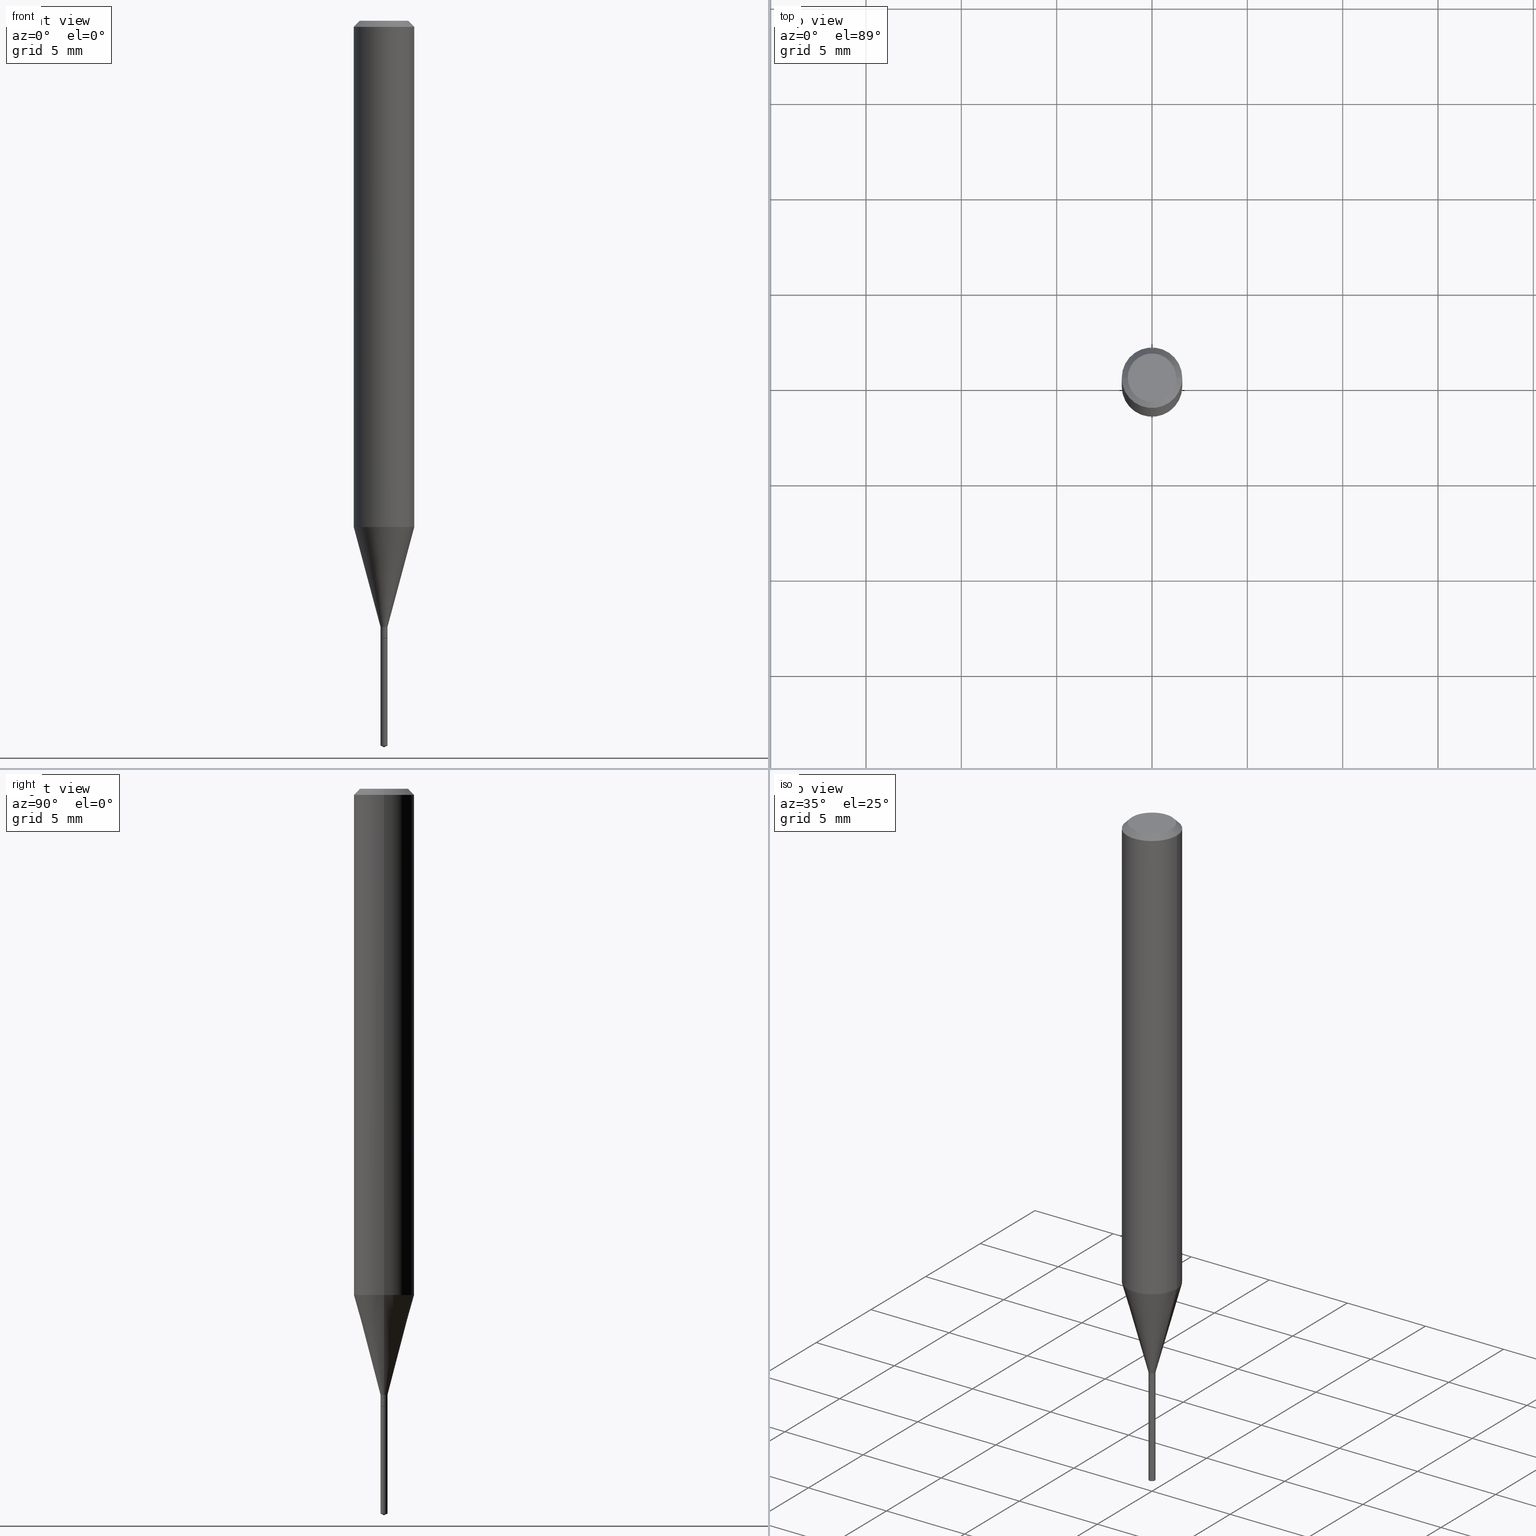
[diagram: canonical four-view strip — front | top / right | iso, engineering-drawing reading convention]
A machine part, canonical four-view strip (front | top / right | iso — engineering-drawing reading convention). The complete STEP part file that produces these views, byte-faithful:
ISO-10303-21;
HEADER;
FILE_DESCRIPTION (( 'STEP AP203' ),
    '1' );
FILE_NAME ('07110.STEP',
    '2024-04-23T19:31:04',
    ( '' ),
    ( '' ),
    'SwSTEP 2.0',
    'SolidWorks 2023',
    '' );
FILE_SCHEMA (( 'CONFIG_CONTROL_DESIGN' ));
ENDSEC;

DATA;
#1 = LENGTH_MEASURE_WITH_UNIT ( LENGTH_MEASURE( 0.02539999999999999897 ), #422 );
#2 = ORIENTED_EDGE ( 'NONE', *, *, #472, .F. ) ;
#3 = APPROVAL_ROLE ( '' ) ;
#4 = UNCERTAINTY_MEASURE_WITH_UNIT (LENGTH_MEASURE( 1.000000000000000082E-05 ), #262, 'distance_accuracy_value', 'NONE');
#5 = DIRECTION ( 'NONE',  ( 1.000000000000000000, -6.982962677686266711E-15, 0.000000000000000000 ) ) ;
#6 = ORIENTED_EDGE ( 'NONE', *, *, #39, .F. ) ;
#7 = PERSON_AND_ORGANIZATION ( #179, #117 ) ;
#8 = DIRECTION ( 'NONE',  ( 1.000000000000000000, -6.982962677686266711E-15, 4.876176775795935793E-29 ) ) ;
#9 = AXIS2_PLACEMENT_3D ( 'NONE', #133, #172, #175 ) ;
#10 = ORIENTED_EDGE ( 'NONE', *, *, #233, .T. ) ;
#11 = COORDINATED_UNIVERSAL_TIME_OFFSET ( 5, 0, .BEHIND. ) ;
#12 = LINE ( 'NONE', #129, #450 ) ;
#13 = EDGE_CURVE ( 'NONE', #119, #283, #48, .T. ) ;
#14 = DATE_AND_TIME ( #204, #303 ) ;
#15 = DIRECTION ( 'NONE',  ( -0.7071067811865452413, 2.468850131082233000E-15, -0.7071067811865497932 ) ) ;
#16 = DIRECTION ( 'NONE',  ( -2.441004968667903807E-29, 3.497873808233676026E-15, 1.000000000000000000 ) ) ;
#17 = VECTOR ( 'NONE', #215, 39.37007874015748143 ) ;
#18 = ORIENTED_EDGE ( 'NONE', *, *, #472, .T. ) ;
#19 = CIRCLE ( 'NONE', #441, 0.006749999999999999924 ) ;
#20 = EDGE_CURVE ( 'NONE', #267, #313, #203, .T. ) ;
#21 = ORIENTED_EDGE ( 'NONE', *, *, #13, .F. ) ;
#22 = CARTESIAN_POINT ( 'NONE',  ( 0.06250000000000006939, -4.364351673553921624E-16, 3.047610484872463374E-30 ) ) ;
#23 = CARTESIAN_POINT ( 'NONE',  ( 0.000000000000000000, 0.000000000000000000, 0.000000000000000000 ) ) ;
#24 = PRODUCT ( '07110', '07110', '', ( #316 ) ) ;
#25 = DIRECTION ( 'NONE',  ( -2.445468806185136597E-29, 3.491481338843145583E-15, 1.000000000000000000 ) ) ;
#26 = CARTESIAN_POINT ( 'NONE',  ( 2.556014249786402796E-29, -3.649310934727484805E-15, -1.045204192881819649 ) ) ;
#27 = CARTESIAN_POINT ( 'NONE',  ( 0.06250000000000013878, -4.085746102082878052E-15, -1.045204192881819649 ) ) ;
#28 = AXIS2_PLACEMENT_3D ( 'NONE', #188, #451, #113 ) ;
#29 = CC_DESIGN_APPROVAL ( #479, ( #454 ) ) ;
#30 = DIRECTION ( 'NONE',  ( 1.000000000000000000, -6.982962677686299054E-15, 0.000000000000000000 ) ) ;
#31 = FACE_OUTER_BOUND ( 'NONE', #112, .T. ) ;
#32 = CARTESIAN_POINT ( 'NONE',  ( 3.060259664060080366E-29, -4.369239747428313470E-15, -1.251400000000000290 ) ) ;
#33 = ORIENTED_EDGE ( 'NONE', *, *, #238, .T. ) ;
#34 = FACE_OUTER_BOUND ( 'NONE', #335, .T. ) ;
#35 = CARTESIAN_POINT ( 'NONE',  ( 0.06250000000000000000, -4.724246415962603826E-16, -0.01250000000000008396 ) ) ;
#36 = ORIENTED_EDGE ( 'NONE', *, *, #167, .F. ) ;
#37 = DIRECTION ( 'NONE',  ( 0.000000000000000000, 0.000000000000000000, 1.000000000000000000 ) ) ;
#38 = AXIS2_PLACEMENT_3D ( 'NONE', #128, #393, #125 ) ;
#39 = EDGE_CURVE ( 'NONE', #369, #324, #342, .T. ) ;
#40 = CARTESIAN_POINT ( 'NONE',  ( 3.672990052264815419E-29, -5.230509915404661862E-15, -1.500000000000000222 ) ) ;
#41 = APPROVAL_DATE_TIME ( #88, #225 ) ;
#42 = APPROVAL_STATUS ( 'not_yet_approved' ) ;
#43 = EDGE_CURVE ( 'NONE', #313, #475, #351, .T. ) ;
#44 = AXIS2_PLACEMENT_3D ( 'NONE', #110, #372, #223 ) ;
#45 = ORIENTED_EDGE ( 'NONE', *, *, #76, .T. ) ;
#46 = CIRCLE ( 'NONE', #269, 0.007250000000000000368 ) ;
#47 = COORDINATED_UNIVERSAL_TIME_OFFSET ( 5, 0, .BEHIND. ) ;
#48 = LINE ( 'NONE', #40, #364 ) ;
#49 = CARTESIAN_POINT ( 'NONE',  ( -0.007250000000000000368, -4.358052008549344274E-15, -1.274500000000000188 ) ) ;
#50 = VECTOR ( 'NONE', #373, 39.37007874015748143 ) ;
#51 = CARTESIAN_POINT ( 'NONE',  ( -0.007250000000000000368, 5.151434834260726609E-17, -3.566227940434806566E-31 ) ) ;
#52 = CARTESIAN_POINT ( 'NONE',  ( 0.000000000000000000, 0.000000000000000000, 0.000000000000000000 ) ) ;
#53 = CARTESIAN_POINT ( 'NONE',  ( 3.117972727886049049E-29, -4.451638707025011594E-15, -1.275000000000000133 ) ) ;
#54 = ADVANCED_FACE ( 'NONE', ( #322 ), #200, .T. ) ;
#55 = FACE_OUTER_BOUND ( 'NONE', #380, .T. ) ;
#56 = CIRCLE ( 'NONE', #134, 0.04999999999999999584 ) ;
#57 = ORIENTED_EDGE ( 'NONE', *, *, #396, .F. ) ;
#58 = AXIS2_PLACEMENT_3D ( 'NONE', #156, #83, #427 ) ;
#59 = DIRECTION ( 'NONE',  ( -2.445468806185136597E-29, 3.491481338843145583E-15, 1.000000000000000000 ) ) ;
#60 = CARTESIAN_POINT ( 'NONE',  ( 3.117972727886049049E-29, -4.451638707025011594E-15, -1.275000000000000133 ) ) ;
#61 = CC_DESIGN_DATE_AND_TIME_ASSIGNMENT ( #14, #473, ( #361 ) ) ;
#62 = ORIENTED_EDGE ( 'NONE', *, *, #43, .T. ) ;
#63 = CARTESIAN_POINT ( 'NONE',  ( 3.117972727886049049E-29, -4.451638707025011594E-15, -1.275000000000000133 ) ) ;
#64 = FACE_OUTER_BOUND ( 'NONE', #229, .T. ) ;
#65 = APPLICATION_CONTEXT ( 'configuration controlled 3d designs of mechanical parts and assemblies' ) ;
#66 = CARTESIAN_POINT ( 'NONE',  ( 3.661507453001856271E-29, -5.246810712350514039E-15, -1.500000000000000222 ) ) ;
#67 = EDGE_CURVE ( 'NONE', #345, #314, #12, .T. ) ;
#68 = DIRECTION ( 'NONE',  ( 1.000000000000000000, -6.982962677686299054E-15, 0.000000000000000000 ) ) ;
#69 = ORIENTED_EDGE ( 'NONE', *, *, #167, .T. ) ;
#70 = AXIS2_PLACEMENT_3D ( 'NONE', #146, #298, #250 ) ;
#71 = FACE_OUTER_BOUND ( 'NONE', #122, .T. ) ;
#72 = ADVANCED_FACE ( 'NONE', ( #90 ), #241, .F. ) ;
#73 = FACE_OUTER_BOUND ( 'NONE', #100, .T. ) ;
#74 = ORIENTED_EDGE ( 'NONE', *, *, #43, .F. ) ;
#75 = DIRECTION ( 'NONE',  ( -2.445468806185136877E-29, 3.491481338843145188E-15, 1.000000000000000000 ) ) ;
#76 = EDGE_CURVE ( 'NONE', #249, #324, #99, .T. ) ;
#77 = EDGE_LOOP ( 'NONE', ( #435, #93 ) ) ;
#78 = PERSON_AND_ORGANIZATION ( #179, #117 ) ;
#79 = CC_DESIGN_SECURITY_CLASSIFICATION ( #361, ( #392 ) ) ;
#80 = CC_DESIGN_PERSON_AND_ORGANIZATION_ASSIGNMENT ( #390, #194, ( #24 ) ) ;
#81 = VERTEX_POINT ( 'NONE', #329 ) ;
#82 = CARTESIAN_POINT ( 'NONE',  ( 0.007250000000000000368, -5.062647941322543390E-17, 3.535228162452053555E-31 ) ) ;
#83 = DIRECTION ( 'NONE',  ( -2.441004968667903807E-29, 3.497873808233676026E-15, 1.000000000000000000 ) ) ;
#84 = ORIENTED_EDGE ( 'NONE', *, *, #287, .T. ) ;
#85 = ORIENTED_EDGE ( 'NONE', *, *, #233, .F. ) ;
#86 = EDGE_CURVE ( 'NONE', #283, #154, #206, .T. ) ;
#87 = DIRECTION ( 'NONE',  ( 1.000000000000000000, -6.982962677686262766E-15, 0.000000000000000000 ) ) ;
#88 = DATE_AND_TIME ( #425, #482 ) ;
#89 = VECTOR ( 'NONE', #16, 39.37007874015748143 ) ;
#90 = FACE_OUTER_BOUND ( 'NONE', #77, .T. ) ;
#91 = APPROVAL_PERSON_ORGANIZATION ( #284, #184, #466 ) ;
#92 = DIRECTION ( 'NONE',  ( -2.441004968667903807E-29, 3.497873808233676026E-15, 1.000000000000000000 ) ) ;
#93 = ORIENTED_EDGE ( 'NONE', *, *, #171, .T. ) ;
#94 = EDGE_CURVE ( 'NONE', #314, #267, #244, .T. ) ;
#95 = APPLICATION_CONTEXT ( 'configuration controlled 3d designs of mechanical parts and assemblies' ) ;
#96 = CARTESIAN_POINT ( 'NONE',  ( -4.132873053354867254E-48, 5.900647395337818946E-34, 1.690012582823346072E-19 ) ) ;
#97 = CC_DESIGN_PERSON_AND_ORGANIZATION_ASSIGNMENT ( #311, #201, ( #454 ) ) ;
#98 = CIRCLE ( 'NONE', #123, 0.007250000000000001235 ) ;
#99 = LINE ( 'NONE', #104, #315 ) ;
#100 = EDGE_LOOP ( 'NONE', ( #85, #263, #359 ) ) ;
#101 = EDGE_CURVE ( 'NONE', #249, #476, #168, .T. ) ;
#102 = ORIENTED_EDGE ( 'NONE', *, *, #238, .F. ) ;
#103 = CARTESIAN_POINT ( 'NONE',  ( 3.658946465835318084E-29, -5.226834945133305336E-15, -1.496619269478376646 ) ) ;
#104 = CARTESIAN_POINT ( 'NONE',  ( -0.06250000000000000000, 3.927916506198520587E-16, -0.01250000000000008396 ) ) ;
#105 = VECTOR ( 'NONE', #430, 39.37007874015748854 ) ;
#106 = ORIENTED_EDGE ( 'NONE', *, *, #67, .F. ) ;
#107 = LINE ( 'NONE', #22, #462 ) ;
#108 = FACE_OUTER_BOUND ( 'NONE', #421, .T. ) ;
#109 = LINE ( 'NONE', #220, #50 ) ;
#110 = CARTESIAN_POINT ( 'NONE',  ( 3.117972727886049049E-29, -4.451638707025011594E-15, -1.275000000000000133 ) ) ;
#111 = EDGE_CURVE ( 'NONE', #137, #283, #193, .T. ) ;
#112 = EDGE_LOOP ( 'NONE', ( #403, #384, #173, #428 ) ) ;
#113 = DIRECTION ( 'NONE',  ( -1.000000000000000000, 6.982962677686266711E-15, 0.000000000000000000 ) ) ;
#114 = CONICAL_SURFACE ( 'NONE', #151, 0.007250000000000000368, 0.2617993877991499629 ) ;
#115 = CARTESIAN_POINT ( 'NONE',  ( 0.006749999999999999924, -4.498773705099393768E-15, -1.275000000000000133 ) ) ;
#116 = LOCAL_TIME ( 15, 31, 4.000000000000000000, #152 ) ;
#117 = ORGANIZATION ( 'UNSPECIFIED', 'UNSPECIFIED', '' ) ;
#118 = FACE_OUTER_BOUND ( 'NONE', #176, .T. ) ;
#119 = VERTEX_POINT ( 'NONE', #326 ) ;
#120 = ADVANCED_FACE ( 'NONE', ( #331 ), #400, .T. ) ;
#121 = DATE_TIME_ROLE ( 'creation_date' ) ;
#122 = EDGE_LOOP ( 'NONE', ( #84, #467, #383, #126 ) ) ;
#123 = AXIS2_PLACEMENT_3D ( 'NONE', #103, #147, #404 ) ;
#124 = ORIENTED_EDGE ( 'NONE', *, *, #20, .F. ) ;
#125 = DIRECTION ( 'NONE',  ( -1.000000000000000000, 6.982962677686266711E-15, 0.000000000000000000 ) ) ;
#126 = ORIENTED_EDGE ( 'NONE', *, *, #477, .F. ) ;
#127 = CC_DESIGN_PERSON_AND_ORGANIZATION_ASSIGNMENT ( #420, #155, ( #392 ) ) ;
#128 = CARTESIAN_POINT ( 'NONE',  ( 3.056836007731441415E-31, -4.364351673553961684E-17, -0.01250000000000008396 ) ) ;
#129 = CARTESIAN_POINT ( 'NONE',  ( -0.006749999999999999924, -4.403677072361204592E-15, -1.275000000000000133 ) ) ;
#130 = ORIENTED_EDGE ( 'NONE', *, *, #396, .T. ) ;
#131 = ADVANCED_FACE ( 'NONE', ( #55 ), #447, .F. ) ;
#132 = PRODUCT_RELATED_PRODUCT_CATEGORY ( 'detail', '', ( #24 ) ) ;
#133 = CARTESIAN_POINT ( 'NONE',  ( -8.265746106709734507E-48, 1.180129479067563789E-33, 3.380025165646692144E-19 ) ) ;
#134 = AXIS2_PLACEMENT_3D ( 'NONE', #296, #221, #418 ) ;
#135 = AXIS2_PLACEMENT_3D ( 'NONE', #218, #214, #410 ) ;
#136 = ORIENTED_EDGE ( 'NONE', *, *, #198, .T. ) ;
#137 = VERTEX_POINT ( 'NONE', #219 ) ;
#138 = DIRECTION ( 'NONE',  ( -2.445468806185136597E-29, 3.491481338843145583E-15, 1.000000000000000000 ) ) ;
#139 = EDGE_LOOP ( 'NONE', ( #102, #62, #370, #457 ) ) ;
#140 = DIRECTION ( 'NONE',  ( -2.445468806185136597E-29, 3.491481338843145583E-15, 1.000000000000000000 ) ) ;
#141 = CARTESIAN_POINT ( 'NONE',  ( 3.116749993482957368E-29, -4.449892966355590090E-15, -1.274500000000000188 ) ) ;
#142 = AXIS2_PLACEMENT_3D ( 'NONE', #141, #291, #442 ) ;
#143 = DIRECTION ( 'NONE',  ( 1.000000000000000000, -6.982962677686266711E-15, 4.876176775795935793E-29 ) ) ;
#144 = DIRECTION ( 'NONE',  ( -2.445468806185136597E-29, 3.491481338843145583E-15, 1.000000000000000000 ) ) ;
#145 = CARTESIAN_POINT ( 'NONE',  ( -0.006749999999999999924, -4.401027845187093391E-15, -1.275000000000000133 ) ) ;
#146 = CARTESIAN_POINT ( 'NONE',  ( -9.243535897573469327E-28, 1.324729069394167476E-13, 37.87007874015748143 ) ) ;
#147 = DIRECTION ( 'NONE',  ( -2.441004968667903807E-29, 3.497873808233676026E-15, 1.000000000000000000 ) ) ;
#148 = CARTESIAN_POINT ( 'NONE',  ( -0.007250000000000000368, -4.358052008549344274E-15, -1.251400000000000290 ) ) ;
#149 = VERTEX_POINT ( 'NONE', #256 ) ;
#150 = ADVANCED_FACE ( 'NONE', ( #108 ), #292, .T. ) ;
#151 = AXIS2_PLACEMENT_3D ( 'NONE', #489, #186, #30 ) ;
#152 = COORDINATED_UNIVERSAL_TIME_OFFSET ( 5, 0, .BEHIND. ) ;
#153 = CARTESIAN_POINT ( 'NONE',  ( 3.117972727886049049E-29, -4.451638707025011594E-15, -1.275000000000000133 ) ) ;
#154 = VERTEX_POINT ( 'NONE', #409 ) ;
#155 = PERSON_AND_ORGANIZATION_ROLE ( 'design_supplier' ) ;
#156 = CARTESIAN_POINT ( 'NONE',  ( -9.243535897573469327E-28, 1.324729069394167476E-13, 37.87007874015748143 ) ) ;
#157 = PERSON_AND_ORGANIZATION_ROLE ( 'creator' ) ;
#158 = EDGE_CURVE ( 'NONE', #149, #345, #398, .T. ) ;
#159 = AXIS2_PLACEMENT_3D ( 'NONE', #308, #37, #355 ) ;
#160 = ORIENTED_EDGE ( 'NONE', *, *, #266, .F. ) ;
#161 = ORIENTED_EDGE ( 'NONE', *, *, #389, .T. ) ;
#162 = CARTESIAN_POINT ( 'NONE',  ( -5.062647941319424924E-17, -0.007250000000004452536, -1.275000000000000133 ) ) ;
#163 = ADVANCED_FACE ( 'NONE', ( #71 ), #478, .T. ) ;
#164 = ORIENTED_EDGE ( 'NONE', *, *, #20, .T. ) ;
#165 = DIRECTION ( 'NONE',  ( -2.445468806185136597E-29, 3.491481338843145583E-15, 1.000000000000000000 ) ) ;
#166 = ORIENTED_EDGE ( 'NONE', *, *, #198, .F. ) ;
#167 = EDGE_CURVE ( 'NONE', #476, #369, #407, .T. ) ;
#168 = CIRCLE ( 'NONE', #9, 0.04999999999999999584 ) ;
#169 = DIRECTION ( 'NONE',  ( -6.982962677686265922E-15, -1.000000000000000000, 0.000000000000000000 ) ) ;
#170 = CONICAL_SURFACE ( 'NONE', #70, 84.42940631927950790, 1.134464013796339321 ) ;
#171 = EDGE_CURVE ( 'NONE', #476, #249, #56, .T. ) ;
#172 = DIRECTION ( 'NONE',  ( -2.445468806185136597E-29, 3.491481338843145583E-15, 1.000000000000000000 ) ) ;
#173 = ORIENTED_EDGE ( 'NONE', *, *, #287, .F. ) ;
#174 = ADVANCED_FACE ( 'NONE', ( #64 ), #183, .T. ) ;
#175 = DIRECTION ( 'NONE',  ( 1.000000000000000000, -6.982962677686265922E-15, 4.876194921942043128E-29 ) ) ;
#176 = EDGE_LOOP ( 'NONE', ( #124, #306, #217, #74 ) ) ;
#177 = CYLINDRICAL_SURFACE ( 'NONE', #423, 0.007250000000000000368 ) ;
#178 = CARTESIAN_POINT ( 'NONE',  ( 5.151434834264384951E-17, 0.007249999999994773646, -1.496619269478376646 ) ) ;
#179 = PERSON ( 'UNSPECIFIED', 'UNSPECIFIED', 'UNSPECIFIED', ('UNSPECIFIED'), ('UNSPECIFIED'), ('UNSPECIFIED') ) ;
#180 = ADVANCED_FACE ( 'NONE', ( #254 ), #191, .T. ) ;
#181 = DIRECTION ( 'NONE',  ( -2.445468806185136597E-29, 3.491481338843145583E-15, 1.000000000000000000 ) ) ;
#182 = DIRECTION ( 'NONE',  ( 1.000000000000000000, -6.982962677686299054E-15, 0.000000000000000000 ) ) ;
#183 = CONICAL_SURFACE ( 'NONE', #28, 0.06250000000000000000, 0.7853981633974450594 ) ;
#184 = APPROVAL ( #471, 'UNSPECIFIED' ) ;
#185 = DIRECTION ( 'NONE',  ( 1.000000000000000000, -6.982962677686299054E-15, 0.000000000000000000 ) ) ;
#186 = DIRECTION ( 'NONE',  ( -2.445468806185136597E-29, 3.491481338843145583E-15, 1.000000000000000000 ) ) ;
#187 = CARTESIAN_POINT ( 'NONE',  ( 3.117972727886049049E-29, -4.451638707025011594E-15, -1.275000000000000133 ) ) ;
#188 = CARTESIAN_POINT ( 'NONE',  ( 3.056836007731441415E-31, -4.364351673553961684E-17, -0.01250000000000008396 ) ) ;
#189 = ADVANCED_FACE ( 'NONE', ( #118 ), #114, .T. ) ;
#190 = EDGE_LOOP ( 'NONE', ( #286, #261, #318, #2 ) ) ;
#191 = CYLINDRICAL_SURFACE ( 'NONE', #44, 0.007250000000000000368 ) ;
#192 = ORIENTED_EDGE ( 'NONE', *, *, #307, .F. ) ;
#193 = CIRCLE ( 'NONE', #251, 0.007250000000000001235 ) ;
#194 = PERSON_AND_ORGANIZATION_ROLE ( 'design_owner' ) ;
#195 = CONICAL_SURFACE ( 'NONE', #399, 0.006749999999999999924, 0.7853981633975496424 ) ;
#196 =( NAMED_UNIT ( * ) SI_UNIT ( $, .STERADIAN. ) SOLID_ANGLE_UNIT ( ) );
#197 = DIRECTION ( 'NONE',  ( 6.439704144417100562E-15, 0.9063077870366620381, 0.4226182617406735731 ) ) ;
#198 = EDGE_CURVE ( 'NONE', #475, #313, #333, .T. ) ;
#199 = APPLICATION_PROTOCOL_DEFINITION ( 'international standard', 'config_control_design', 1994, #95 ) ;
#200 = CYLINDRICAL_SURFACE ( 'NONE', #258, 0.06250000000000006939 ) ;
#201 = PERSON_AND_ORGANIZATION_ROLE ( 'creator' ) ;
#202 = VECTOR ( 'NONE', #440, 39.37007874015748143 ) ;
#203 = LINE ( 'NONE', #278, #105 ) ;
#204 = CALENDAR_DATE ( 2024, 23, 4 ) ;
#205 = FACE_OUTER_BOUND ( 'NONE', #453, .T. ) ;
#206 = LINE ( 'NONE', #246, #89 ) ;
#207 = APPROVAL_PERSON_ORGANIZATION ( #78, #225, #460 ) ;
#208 = DIRECTION ( 'NONE',  ( -2.445468806185136877E-29, 3.491481338843145188E-15, 1.000000000000000000 ) ) ;
#209 = DIRECTION ( 'NONE',  ( -2.445468806185136597E-29, 3.491481338843145583E-15, 1.000000000000000000 ) ) ;
#210 = DIRECTION ( 'NONE',  ( -6.982962677686265922E-15, -1.000000000000000000, 0.000000000000000000 ) ) ;
#211 = VECTOR ( 'NONE', #305, 39.37007874015748854 ) ;
#212 = LOCAL_TIME ( 15, 31, 4.000000000000000000, #433 ) ;
#213 = ORIENTED_EDGE ( 'NONE', *, *, #101, .F. ) ;
#214 = DIRECTION ( 'NONE',  ( -2.441004968667903807E-29, 3.497873808233676026E-15, 1.000000000000000000 ) ) ;
#215 = DIRECTION ( 'NONE',  ( -2.445468806185136877E-29, 3.491481338843145188E-15, 1.000000000000000000 ) ) ;
#216 = EDGE_CURVE ( 'NONE', #154, #289, #391, .T. ) ;
#217 = ORIENTED_EDGE ( 'NONE', *, *, #266, .T. ) ;
#218 = CARTESIAN_POINT ( 'NONE',  ( 3.117972727886049049E-29, -4.451638707025011594E-15, -1.275000000000000133 ) ) ;
#219 = CARTESIAN_POINT ( 'NONE',  ( -5.062647941318883198E-17, -0.007250000000005227090, -1.496619269478376646 ) ) ;
#220 = CARTESIAN_POINT ( 'NONE',  ( -5.062647941319424924E-17, -0.007250000000004452536, -1.275000000000000133 ) ) ;
#221 = DIRECTION ( 'NONE',  ( -2.445468806185136597E-29, 3.491481338843145583E-15, 1.000000000000000000 ) ) ;
#222 = CARTESIAN_POINT ( 'NONE',  ( 3.117972727886049049E-29, -4.451638707025011594E-15, -1.275000000000000133 ) ) ;
#223 = DIRECTION ( 'NONE',  ( -6.982962677686265922E-15, -1.000000000000000000, 0.000000000000000000 ) ) ;
#224 = DIRECTION ( 'NONE',  ( -2.445468806185136597E-29, 3.491481338843145583E-15, 1.000000000000000000 ) ) ;
#225 = APPROVAL ( #360, 'UNSPECIFIED' ) ;
#226 = DIRECTION ( 'NONE',  ( 1.000000000000000000, -6.982962677686262766E-15, 0.000000000000000000 ) ) ;
#227 = ORIENTED_EDGE ( 'NONE', *, *, #416, .F. ) ;
#228 = PERSON_AND_ORGANIZATION_ROLE ( 'classification_officer' ) ;
#229 = EDGE_LOOP ( 'NONE', ( #36, #213, #45, #426 ) ) ;
#230 = AXIS2_PLACEMENT_3D ( 'NONE', #60, #339, #371 ) ;
#231 = AXIS2_PLACEMENT_3D ( 'NONE', #63, #140, #259 ) ;
#232 = ORIENTED_EDGE ( 'NONE', *, *, #86, .F. ) ;
#233 = EDGE_CURVE ( 'NONE', #119, #137, #260, .T. ) ;
#234 = CARTESIAN_POINT ( 'NONE',  ( 2.556014249786402796E-29, -3.649310934727484805E-15, -1.045204192881819649 ) ) ;
#235 =( NAMED_UNIT ( * ) PLANE_ANGLE_UNIT ( ) SI_UNIT ( $, .RADIAN. ) );
#236 = SECURITY_CLASSIFICATION_LEVEL ( 'unclassified' ) ;
#237 = AXIS2_PLACEMENT_3D ( 'NONE', #153, #350, #413 ) ;
#238 = EDGE_CURVE ( 'NONE', #313, #324, #301, .T. ) ;
#239 = AXIS2_PLACEMENT_3D ( 'NONE', #187, #290, #338 ) ;
#240 = FACE_OUTER_BOUND ( 'NONE', #468, .T. ) ;
#241 = PLANE ( 'NONE',  #385 ) ;
#242 = VERTEX_POINT ( 'NONE', #348 ) ;
#243 = CLOSED_SHELL ( 'NONE', ( #352, #486, #54, #150, #163, #465, #189, #120, #174, #72, #323, #368 ) ) ;
#244 = LINE ( 'NONE', #51, #275 ) ;
#245 = CALENDAR_DATE ( 2024, 23, 4 ) ;
#246 = CARTESIAN_POINT ( 'NONE',  ( 5.151434834263843842E-17, 0.007249999999995548200, -1.275000000000000133 ) ) ;
#247 = ORIENTED_EDGE ( 'NONE', *, *, #171, .F. ) ;
#248 = CARTESIAN_POINT ( 'NONE',  ( 3.658946465835318084E-29, -5.226834945133305336E-15, -1.496619269478376646 ) ) ;
#249 = VERTEX_POINT ( 'NONE', #485 ) ;
#250 = DIRECTION ( 'NONE',  ( -6.982962677686267499E-15, -1.000000000000000000, 3.520397390770238511E-15 ) ) ;
#251 = AXIS2_PLACEMENT_3D ( 'NONE', #248, #402, #169 ) ;
#252 = CIRCLE ( 'NONE', #142, 0.007250000000000000368 ) ;
#253 = EDGE_LOOP ( 'NONE', ( #136, #33, #6, #227 ) ) ;
#254 = FACE_OUTER_BOUND ( 'NONE', #190, .T. ) ;
#255 = PLANE ( 'NONE',  #239 ) ;
#256 = CARTESIAN_POINT ( 'NONE',  ( 0.006749999999999999924, -4.498773705099393768E-15, -1.275000000000000133 ) ) ;
#257 = DIRECTION ( 'NONE',  ( 0.7071067811865452413, -7.319954787623248157E-15, -0.7071067811865497932 ) ) ;
#258 = AXIS2_PLACEMENT_3D ( 'NONE', #274, #358, #8 ) ;
#259 = DIRECTION ( 'NONE',  ( 1.000000000000000000, -6.982962677686224901E-15, 0.000000000000000000 ) ) ;
#260 = LINE ( 'NONE', #66, #488 ) ;
#261 = ORIENTED_EDGE ( 'NONE', *, *, #86, .T. ) ;
#262 =( CONVERSION_BASED_UNIT ( 'INCH', #1 ) LENGTH_UNIT ( ) NAMED_UNIT ( #293 ) );
#263 = ORIENTED_EDGE ( 'NONE', *, *, #13, .T. ) ;
#264 = MANIFOLD_SOLID_BREP ( 'Body-Move/Copy2[1]', #481 ) ;
#265 = FACE_OUTER_BOUND ( 'NONE', #464, .T. ) ;
#266 = EDGE_CURVE ( 'NONE', #81, #475, #456, .T. ) ;
#267 = VERTEX_POINT ( 'NONE', #148 ) ;
#268 = COORDINATED_UNIVERSAL_TIME_OFFSET ( 5, 0, .BEHIND. ) ;
#269 = AXIS2_PLACEMENT_3D ( 'NONE', #309, #165, #367 ) ;
#270 = MANIFOLD_SOLID_BREP ( 'Body-Move/Copy2[2]', #243 ) ;
#271 = ORIENTED_EDGE ( 'NONE', *, *, #477, .T. ) ;
#272 = ADVANCED_FACE ( 'NONE', ( #73 ), #170, .T. ) ;
#273 = DATE_AND_TIME ( #387, #116 ) ;
#274 = CARTESIAN_POINT ( 'NONE',  ( 0.000000000000000000, 0.000000000000000000, 0.000000000000000000 ) ) ;
#275 = VECTOR ( 'NONE', #208, 39.37007874015748143 ) ;
#276 = AXIS2_PLACEMENT_3D ( 'NONE', #449, #138, #185 ) ;
#277 = CARTESIAN_POINT ( 'NONE',  ( -0.06250000000000013878, -3.205221724877421794E-15, -1.045204192881819649 ) ) ;
#278 = CARTESIAN_POINT ( 'NONE',  ( -0.007250000000000000368, -4.317725399085706358E-15, -1.251400000000000290 ) ) ;
#279 = DATE_AND_TIME ( #245, #212 ) ;
#280 = AXIS2_PLACEMENT_3D ( 'NONE', #362, #356, #5 ) ;
#281 = LOCAL_TIME ( 15, 31, 4.000000000000000000, #11 ) ;
#282 = CC_DESIGN_DATE_AND_TIME_ASSIGNMENT ( #304, #121, ( #454 ) ) ;
#283 = VERTEX_POINT ( 'NONE', #178 ) ;
#284 = PERSON_AND_ORGANIZATION ( #179, #117 ) ;
#285 = DIRECTION ( 'NONE',  ( 1.000000000000000000, -6.982962677686266711E-15, 4.876176775795935793E-29 ) ) ;
#286 = ORIENTED_EDGE ( 'NONE', *, *, #111, .T. ) ;
#287 = EDGE_CURVE ( 'NONE', #242, #314, #252, .T. ) ;
#288 = LINE ( 'NONE', #115, #202 ) ;
#289 = VERTEX_POINT ( 'NONE', #162 ) ;
#290 = DIRECTION ( 'NONE',  ( -2.438088387897960049E-29, 3.491481338843145188E-15, 1.000000000000000000 ) ) ;
#291 = DIRECTION ( 'NONE',  ( -2.445468806185136597E-29, 3.491481338843145583E-15, 1.000000000000000000 ) ) ;
#292 = CONICAL_SURFACE ( 'NONE', #334, 0.007250000000000000368, 0.2617993877991499629 ) ;
#293 = DIMENSIONAL_EXPONENTS ( 1.000000000000000000, 0.000000000000000000, 0.000000000000000000, 0.000000000000000000, 0.000000000000000000, 0.000000000000000000, 0.000000000000000000 ) ;
#294 = CC_DESIGN_APPROVAL ( #184, ( #361 ) ) ;
#295 = CARTESIAN_POINT ( 'NONE',  ( -0.06250000000000000000, -1.402388015881448581E-15, -0.01250000000000008396 ) ) ;
#296 = CARTESIAN_POINT ( 'NONE',  ( -8.265746106709734507E-48, 1.180129479067563789E-33, 3.380025165646692144E-19 ) ) ;
#297 = FACE_OUTER_BOUND ( 'NONE', #459, .T. ) ;
#298 = DIRECTION ( 'NONE',  ( -2.441004968667903807E-29, 3.497873808233676026E-15, 1.000000000000000000 ) ) ;
#299 = ADVANCED_FACE ( 'NONE', ( #240 ), #376, .T. ) ;
#300 = CYLINDRICAL_SURFACE ( 'NONE', #135, 0.007250000000000000368 ) ;
#301 = LINE ( 'NONE', #346, #17 ) ;
#302 = ORIENTED_EDGE ( 'NONE', *, *, #94, .F. ) ;
#303 = LOCAL_TIME ( 15, 31, 4.000000000000000000, #47 ) ;
#304 = DATE_AND_TIME ( #455, #281 ) ;
#305 = DIRECTION ( 'NONE',  ( 0.2588190451025212391, 1.565188264969622362E-15, 0.9659258262890679791 ) ) ;
#306 = ORIENTED_EDGE ( 'NONE', *, *, #307, .T. ) ;
#307 = EDGE_CURVE ( 'NONE', #267, #81, #46, .T. ) ;
#308 = CARTESIAN_POINT ( 'NONE',  ( 0.000000000000000000, 0.000000000000000000, 0.000000000000000000 ) ) ;
#309 = CARTESIAN_POINT ( 'NONE',  ( 3.060259664060080366E-29, -4.369239747428313470E-15, -1.251400000000000290 ) ) ;
#310 = ORIENTED_EDGE ( 'NONE', *, *, #382, .T. ) ;
#311 = PERSON_AND_ORGANIZATION ( #179, #117 ) ;
#312 = EDGE_CURVE ( 'NONE', #289, #154, #470, .T. ) ;
#313 = VERTEX_POINT ( 'NONE', #277 ) ;
#314 = VERTEX_POINT ( 'NONE', #49 ) ;
#315 = VECTOR ( 'NONE', #15, 39.37007874015748143 ) ;
#316 = MECHANICAL_CONTEXT ( 'NONE', #65, 'mechanical' ) ;
#317 = CONICAL_SURFACE ( 'NONE', #231, 0.006749999999999999924, 0.7853981633975496424 ) ;
#318 = ORIENTED_EDGE ( 'NONE', *, *, #312, .F. ) ;
#319 = ORIENTED_EDGE ( 'NONE', *, *, #328, .F. ) ;
#320 = PERSON_AND_ORGANIZATION ( #179, #117 ) ;
#321 = DESIGN_CONTEXT ( 'detailed design', #95, 'design' ) ;
#322 = FACE_OUTER_BOUND ( 'NONE', #253, .T. ) ;
#323 = ADVANCED_FACE ( 'NONE', ( #205 ), #255, .F. ) ;
#324 = VERTEX_POINT ( 'NONE', #295 ) ;
#325 = AXIS2_PLACEMENT_3D ( 'NONE', #347, #181, #340 ) ;
#326 = CARTESIAN_POINT ( 'NONE',  ( 3.661507453001856271E-29, -5.246810712350514039E-15, -1.500000000000000222 ) ) ;
#327 = SHAPE_DEFINITION_REPRESENTATION ( #446, #395 ) ;
#328 = EDGE_CURVE ( 'NONE', #345, #149, #19, .T. ) ;
#329 = CARTESIAN_POINT ( 'NONE',  ( 0.007250000000000000368, -4.419866226841538651E-15, -1.251400000000000290 ) ) ;
#330 = ADVANCED_FACE ( 'NONE', ( #34 ), #300, .T. ) ;
#331 = FACE_OUTER_BOUND ( 'NONE', #139, .T. ) ;
#332 = ORIENTED_EDGE ( 'NONE', *, *, #216, .F. ) ;
#333 = CIRCLE ( 'NONE', #431, 0.06250000000000013878 ) ;
#334 = AXIS2_PLACEMENT_3D ( 'NONE', #32, #379, #182 ) ;
#335 = EDGE_LOOP ( 'NONE', ( #232, #161, #18, #332 ) ) ;
#336 = DIRECTION ( 'NONE',  ( -2.445468806185136877E-29, 3.491481338843145188E-15, 1.000000000000000000 ) ) ;
#337 = EDGE_LOOP ( 'NONE', ( #302, #130, #271, #192 ) ) ;
#338 = DIRECTION ( 'NONE',  ( 1.000000000000000000, -6.982962677686265922E-15, 4.876176775795935793E-29 ) ) ;
#339 = DIRECTION ( 'NONE',  ( 2.441004968667903807E-29, -3.497873808233676026E-15, -1.000000000000000000 ) ) ;
#340 = DIRECTION ( 'NONE',  ( 1.000000000000000000, -6.982962677686266711E-15, 0.000000000000000000 ) ) ;
#341 = DIRECTION ( 'NONE',  ( 1.000000000000000000, -6.982962677686266711E-15, 4.876176775795935793E-29 ) ) ;
#342 = CIRCLE ( 'NONE', #280, 0.06250000000000000000 ) ;
#343 = VECTOR ( 'NONE', #75, 39.37007874015748143 ) ;
#344 = CARTESIAN_POINT ( 'NONE',  ( 3.116749993482957368E-29, -4.449892966355590090E-15, -1.274500000000000188 ) ) ;
#345 = VERTEX_POINT ( 'NONE', #145 ) ;
#346 = CARTESIAN_POINT ( 'NONE',  ( -0.06250000000000006939, 4.440892098500631092E-16, -3.074334431409319267E-30 ) ) ;
#347 = CARTESIAN_POINT ( 'NONE',  ( 3.056836007731441415E-31, -4.364351673553961684E-17, -0.01250000000000008396 ) ) ;
#348 = CARTESIAN_POINT ( 'NONE',  ( 0.007250000000000000368, -4.500519445768816061E-15, -1.274500000000000188 ) ) ;
#349 = ORIENTED_EDGE ( 'NONE', *, *, #39, .T. ) ;
#350 = DIRECTION ( 'NONE',  ( -2.441004968667903807E-29, 3.497873808233676026E-15, 1.000000000000000000 ) ) ;
#351 = CIRCLE ( 'NONE', #469, 0.06250000000000013878 ) ;
#352 = ADVANCED_FACE ( 'NONE', ( #31 ), #317, .T. ) ;
#353 = CONICAL_SURFACE ( 'NONE', #38, 0.06250000000000000000, 0.7853981633974450594 ) ;
#354 = CC_DESIGN_PERSON_AND_ORGANIZATION_ASSIGNMENT ( #320, #228, ( #361 ) ) ;
#355 = DIRECTION ( 'NONE',  ( 1.000000000000000000, 0.000000000000000000, 0.000000000000000000 ) ) ;
#356 = DIRECTION ( 'NONE',  ( -2.445468806185136597E-29, 3.491481338843145583E-15, 1.000000000000000000 ) ) ;
#357 = APPROVAL_DATE_TIME ( #273, #479 ) ;
#358 = DIRECTION ( 'NONE',  ( -2.445468806185136597E-29, 3.491481338843145583E-15, 1.000000000000000000 ) ) ;
#359 = ORIENTED_EDGE ( 'NONE', *, *, #111, .F. ) ;
#360 = APPROVAL_STATUS ( 'not_yet_approved' ) ;
#361 = SECURITY_CLASSIFICATION ( '', '', #236 ) ;
#362 = CARTESIAN_POINT ( 'NONE',  ( 3.056836007731441415E-31, -4.364351673553961684E-17, -0.01250000000000008396 ) ) ;
#363 = ORIENTED_EDGE ( 'NONE', *, *, #158, .F. ) ;
#364 = VECTOR ( 'NONE', #197, 39.37007874015748854 ) ;
#365 = AXIS2_PLACEMENT_3D ( 'NONE', #344, #25, #68 ) ;
#366 = DIRECTION ( 'NONE',  ( 2.438088387897960049E-29, -3.491481338843145188E-15, -1.000000000000000000 ) ) ;
#367 = DIRECTION ( 'NONE',  ( 1.000000000000000000, -6.982962677686299054E-15, 0.000000000000000000 ) ) ;
#368 = ADVANCED_FACE ( 'NONE', ( #297 ), #195, .T. ) ;
#369 = VERTEX_POINT ( 'NONE', #412 ) ;
#370 = ORIENTED_EDGE ( 'NONE', *, *, #416, .T. ) ;
#371 = DIRECTION ( 'NONE',  ( 6.982962677686265922E-15, 1.000000000000000000, -3.497873808233676026E-15 ) ) ;
#372 = DIRECTION ( 'NONE',  ( -2.441004968667903807E-29, 3.497873808233676026E-15, 1.000000000000000000 ) ) ;
#373 = DIRECTION ( 'NONE',  ( -2.441004968667903807E-29, 3.497873808233676026E-15, 1.000000000000000000 ) ) ;
#374 = DIRECTION ( 'NONE',  ( -6.328713451373443531E-15, -0.9063077870366591515, 0.4226182617406799014 ) ) ;
#375 = AXIS2_PLACEMENT_3D ( 'NONE', #52, #209, #285 ) ;
#376 = CONICAL_SURFACE ( 'NONE', #58, 84.42940631927950790, 1.134464013796339321 ) ;
#377 = EDGE_CURVE ( 'NONE', #81, #267, #490, .T. ) ;
#378 = DIRECTION ( 'NONE',  ( 1.000000000000000000, -6.982962677686224901E-15, 0.000000000000000000 ) ) ;
#379 = DIRECTION ( 'NONE',  ( -2.445468806185136597E-29, 3.491481338843145583E-15, 1.000000000000000000 ) ) ;
#380 = EDGE_LOOP ( 'NONE', ( #424, #401 ) ) ;
#381 = CARTESIAN_POINT ( 'NONE',  ( 3.117972727886049049E-29, -4.451638707025011594E-15, -1.275000000000000133 ) ) ;
#382 = EDGE_CURVE ( 'NONE', #149, #242, #288, .T. ) ;
#383 = ORIENTED_EDGE ( 'NONE', *, *, #377, .F. ) ;
#384 = ORIENTED_EDGE ( 'NONE', *, *, #67, .T. ) ;
#385 = AXIS2_PLACEMENT_3D ( 'NONE', #96, #366, #438 ) ;
#386 =( GEOMETRIC_REPRESENTATION_CONTEXT ( 3 ) GLOBAL_UNCERTAINTY_ASSIGNED_CONTEXT ( ( #4 ) ) GLOBAL_UNIT_ASSIGNED_CONTEXT ( ( #262, #235, #196 ) ) REPRESENTATION_CONTEXT ( 'NONE', 'WORKASPACE' ) );
#387 = CALENDAR_DATE ( 2024, 23, 4 ) ;
#388 = DIRECTION ( 'NONE',  ( -2.445468806185136597E-29, 3.491481338843145583E-15, 1.000000000000000000 ) ) ;
#389 = EDGE_CURVE ( 'NONE', #283, #137, #98, .T. ) ;
#390 = PERSON_AND_ORGANIZATION ( #179, #117 ) ;
#391 = CIRCLE ( 'NONE', #237, 0.007250000000000000368 ) ;
#392 = PRODUCT_DEFINITION_FORMATION_WITH_SPECIFIED_SOURCE ( 'ANY', '', #24, .NOT_KNOWN. ) ;
#393 = DIRECTION ( 'NONE',  ( 2.445468806185136597E-29, -3.491481338843145583E-15, -1.000000000000000000 ) ) ;
#394 = DIRECTION ( 'NONE',  ( -0.7071067811866191821, 7.493145998870612907E-15, 0.7071067811864758523 ) ) ;
#395 = ADVANCED_BREP_SHAPE_REPRESENTATION ( '07110', ( #264, #270, #159 ), #386 ) ;
#396 = EDGE_CURVE ( 'NONE', #314, #242, #406, .T. ) ;
#397 = APPROVAL_DATE_TIME ( #279, #184 ) ;
#398 = CIRCLE ( 'NONE', #405, 0.006749999999999999924 ) ;
#399 = AXIS2_PLACEMENT_3D ( 'NONE', #437, #224, #378 ) ;
#400 = CYLINDRICAL_SURFACE ( 'NONE', #375, 0.06250000000000006939 ) ;
#401 = ORIENTED_EDGE ( 'NONE', *, *, #216, .T. ) ;
#402 = DIRECTION ( 'NONE',  ( -2.441004968667903807E-29, 3.497873808233676026E-15, 1.000000000000000000 ) ) ;
#403 = ORIENTED_EDGE ( 'NONE', *, *, #158, .T. ) ;
#404 = DIRECTION ( 'NONE',  ( -6.982962677686265922E-15, -1.000000000000000000, 0.000000000000000000 ) ) ;
#405 = AXIS2_PLACEMENT_3D ( 'NONE', #381, #483, #444 ) ;
#406 = CIRCLE ( 'NONE', #365, 0.007250000000000000368 ) ;
#407 = LINE ( 'NONE', #35, #414 ) ;
#408 = DIRECTION ( 'NONE',  ( -2.445468806185136597E-29, 3.491481338843145583E-15, 1.000000000000000000 ) ) ;
#409 = CARTESIAN_POINT ( 'NONE',  ( 5.151434834264390498E-17, 0.007249999999995549067, -1.275000000000000133 ) ) ;
#410 = DIRECTION ( 'NONE',  ( -6.982962677686265922E-15, -1.000000000000000000, 0.000000000000000000 ) ) ;
#411 = DIRECTION ( 'NONE',  ( -2.445468806185136597E-29, 3.491481338843145583E-15, 1.000000000000000000 ) ) ;
#412 = CARTESIAN_POINT ( 'NONE',  ( 0.06250000000000000000, -4.800786840909313294E-16, -0.01250000000000008396 ) ) ;
#413 = DIRECTION ( 'NONE',  ( -6.982962677686265922E-15, -1.000000000000000000, 0.000000000000000000 ) ) ;
#414 = VECTOR ( 'NONE', #257, 39.37007874015748143 ) ;
#415 = CIRCLE ( 'NONE', #325, 0.06250000000000000000 ) ;
#416 = EDGE_CURVE ( 'NONE', #475, #369, #107, .T. ) ;
#417 = FACE_OUTER_BOUND ( 'NONE', #337, .T. ) ;
#418 = DIRECTION ( 'NONE',  ( 1.000000000000000000, -6.982962677686265922E-15, 4.876194921942043128E-29 ) ) ;
#419 = ORIENTED_EDGE ( 'NONE', *, *, #377, .T. ) ;
#420 = PERSON_AND_ORGANIZATION ( #179, #117 ) ;
#421 = EDGE_LOOP ( 'NONE', ( #419, #164, #166, #160 ) ) ;
#422 =( LENGTH_UNIT ( ) NAMED_UNIT ( * ) SI_UNIT ( $, .METRE. ) );
#423 = AXIS2_PLACEMENT_3D ( 'NONE', #480, #59, #143 ) ;
#424 = ORIENTED_EDGE ( 'NONE', *, *, #312, .T. ) ;
#425 = CALENDAR_DATE ( 2024, 23, 4 ) ;
#426 = ORIENTED_EDGE ( 'NONE', *, *, #448, .T. ) ;
#427 = DIRECTION ( 'NONE',  ( -6.982962677686267499E-15, -1.000000000000000000, 3.520397390770238511E-15 ) ) ;
#428 = ORIENTED_EDGE ( 'NONE', *, *, #382, .F. ) ;
#429 = APPLICATION_PROTOCOL_DEFINITION ( 'international standard', 'config_control_design', 1994, #65 ) ;
#430 = DIRECTION ( 'NONE',  ( -0.2588190451025212391, 5.211531920934549464E-15, 0.9659258262890679791 ) ) ;
#431 = AXIS2_PLACEMENT_3D ( 'NONE', #26, #411, #226 ) ;
#432 = APPROVAL_PERSON_ORGANIZATION ( #458, #479, #3 ) ;
#433 = COORDINATED_UNIVERSAL_TIME_OFFSET ( 5, 0, .BEHIND. ) ;
#434 = AXIS2_PLACEMENT_3D ( 'NONE', #53, #92, #210 ) ;
#435 = ORIENTED_EDGE ( 'NONE', *, *, #101, .T. ) ;
#436 = ORIENTED_EDGE ( 'NONE', *, *, #328, .T. ) ;
#437 = CARTESIAN_POINT ( 'NONE',  ( 3.117972727886049049E-29, -4.451638707025011594E-15, -1.275000000000000133 ) ) ;
#438 = DIRECTION ( 'NONE',  ( -1.000000000000000000, 6.982962677686265922E-15, -4.876176775795935793E-29 ) ) ;
#439 = ORIENTED_EDGE ( 'NONE', *, *, #76, .F. ) ;
#440 = DIRECTION ( 'NONE',  ( 0.7071067811866191821, -2.468850131083007662E-15, 0.7071067811864758523 ) ) ;
#441 = AXIS2_PLACEMENT_3D ( 'NONE', #222, #408, #443 ) ;
#442 = DIRECTION ( 'NONE',  ( 1.000000000000000000, -6.982962677686299054E-15, 0.000000000000000000 ) ) ;
#443 = DIRECTION ( 'NONE',  ( 1.000000000000000000, -6.982962677686224901E-15, 0.000000000000000000 ) ) ;
#444 = DIRECTION ( 'NONE',  ( 1.000000000000000000, -6.982962677686224901E-15, 0.000000000000000000 ) ) ;
#445 = LINE ( 'NONE', #82, #343 ) ;
#446 = PRODUCT_DEFINITION_SHAPE ( 'NONE', 'NONE',  #454 ) ;
#447 = PLANE ( 'NONE',  #230 ) ;
#448 = EDGE_CURVE ( 'NONE', #324, #369, #415, .T. ) ;
#449 = CARTESIAN_POINT ( 'NONE',  ( 3.060259664060080366E-29, -4.369239747428313470E-15, -1.251400000000000290 ) ) ;
#450 = VECTOR ( 'NONE', #394, 39.37007874015748143 ) ;
#451 = DIRECTION ( 'NONE',  ( 2.445468806185136597E-29, -3.491481338843145583E-15, -1.000000000000000000 ) ) ;
#452 = CC_DESIGN_APPROVAL ( #225, ( #392 ) ) ;
#453 = EDGE_LOOP ( 'NONE', ( #363, #319 ) ) ;
#454 = PRODUCT_DEFINITION ( 'UNKNOWN', '', #392, #321 ) ;
#455 = CALENDAR_DATE ( 2024, 23, 4 ) ;
#456 = LINE ( 'NONE', #487, #211 ) ;
#457 = ORIENTED_EDGE ( 'NONE', *, *, #448, .F. ) ;
#458 = PERSON_AND_ORGANIZATION ( #179, #117 ) ;
#459 = EDGE_LOOP ( 'NONE', ( #106, #436, #310, #57 ) ) ;
#460 = APPROVAL_ROLE ( '' ) ;
#461 = AXIS2_PLACEMENT_3D ( 'NONE', #23, #144, #341 ) ;
#462 = VECTOR ( 'NONE', #336, 39.37007874015748143 ) ;
#463 = ORIENTED_EDGE ( 'NONE', *, *, #389, .F. ) ;
#464 = EDGE_LOOP ( 'NONE', ( #247, #69, #349, #439 ) ) ;
#465 = ADVANCED_FACE ( 'NONE', ( #417 ), #177, .T. ) ;
#466 = APPROVAL_ROLE ( '' ) ;
#467 = ORIENTED_EDGE ( 'NONE', *, *, #94, .T. ) ;
#468 = EDGE_LOOP ( 'NONE', ( #21, #10, #463 ) ) ;
#469 = AXIS2_PLACEMENT_3D ( 'NONE', #234, #388, #87 ) ;
#470 = CIRCLE ( 'NONE', #434, 0.007250000000000000368 ) ;
#471 = APPROVAL_STATUS ( 'not_yet_approved' ) ;
#472 = EDGE_CURVE ( 'NONE', #137, #289, #109, .T. ) ;
#473 = DATE_TIME_ROLE ( 'classification_date' ) ;
#474 = CC_DESIGN_PERSON_AND_ORGANIZATION_ASSIGNMENT ( #7, #157, ( #392 ) ) ;
#475 = VERTEX_POINT ( 'NONE', #27 ) ;
#476 = VERTEX_POINT ( 'NONE', #484 ) ;
#477 = EDGE_CURVE ( 'NONE', #242, #81, #445, .T. ) ;
#478 = CYLINDRICAL_SURFACE ( 'NONE', #461, 0.007250000000000000368 ) ;
#479 = APPROVAL ( #42, 'UNSPECIFIED' ) ;
#480 = CARTESIAN_POINT ( 'NONE',  ( 0.000000000000000000, 0.000000000000000000, 0.000000000000000000 ) ) ;
#481 = CLOSED_SHELL ( 'NONE', ( #180, #272, #299, #330, #131 ) ) ;
#482 = LOCAL_TIME ( 15, 31, 4.000000000000000000, #268 ) ;
#483 = DIRECTION ( 'NONE',  ( -2.445468806185136597E-29, 3.491481338843145583E-15, 1.000000000000000000 ) ) ;
#484 = CARTESIAN_POINT ( 'NONE',  ( 0.04999999999999999584, -4.077247707424184705E-16, 3.380025165673154903E-19 ) ) ;
#485 = CARTESIAN_POINT ( 'NONE',  ( -0.04999999999999999584, 3.709698922520826725E-16, 3.380025165621512536E-19 ) ) ;
#486 = ADVANCED_FACE ( 'NONE', ( #265 ), #353, .T. ) ;
#487 = CARTESIAN_POINT ( 'NONE',  ( 0.007250000000000000368, -4.419866226841538651E-15, -1.251400000000000290 ) ) ;
#488 = VECTOR ( 'NONE', #374, 39.37007874015748143 ) ;
#489 = CARTESIAN_POINT ( 'NONE',  ( 3.060259664060080366E-29, -4.369239747428313470E-15, -1.251400000000000290 ) ) ;
#490 = CIRCLE ( 'NONE', #276, 0.007250000000000000368 ) ;
ENDSEC;
END-ISO-10303-21;
